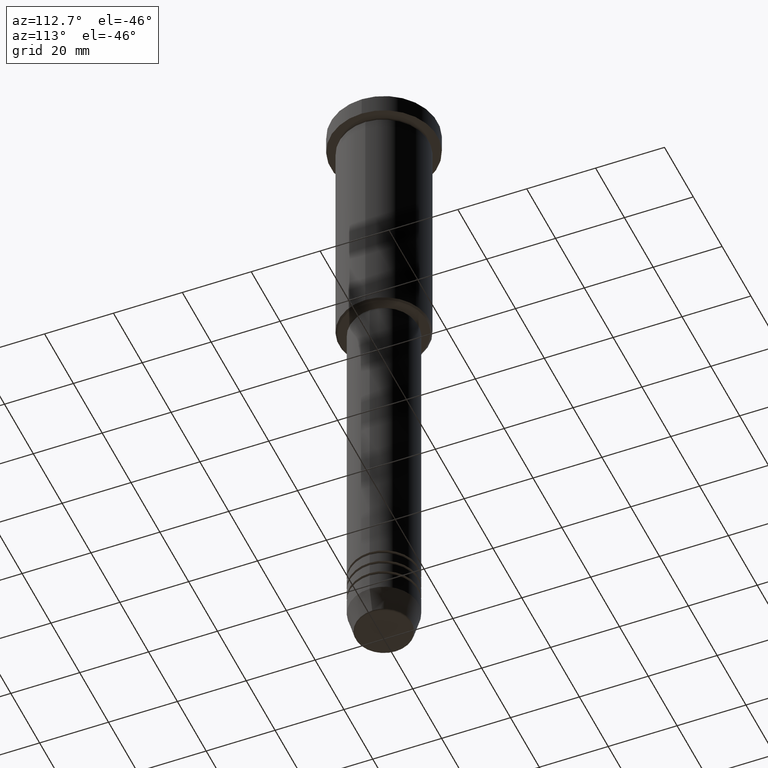
[diagram: clean part render]
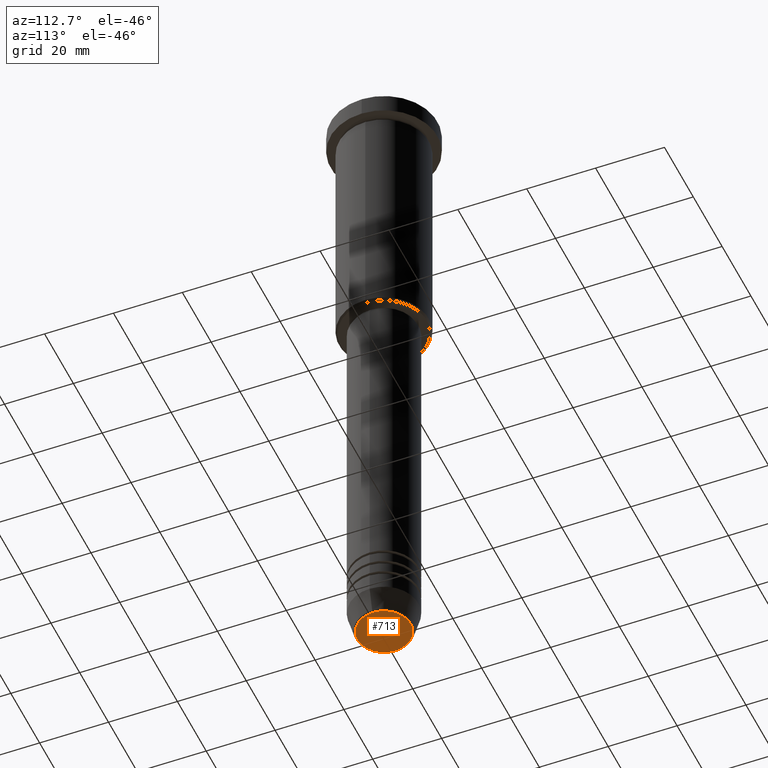
[diagram: same view with one face highlighted and labeled with its STEP entity id]
A machine part, auxiliary view. The second image highlights one B-rep face of the part: STEP entity #713.
In plain terms, the highlighted planar face has unit normal (0, -0, 1).
Its self-contained STEP definition (entity closure, byte-faithful):
#38 = DIRECTION ( 'NONE',  ( 1.000000000000000000, 0.000000000000000000, 0.000000000000000000 ) ) ;
#125 = VERTEX_POINT ( 'NONE', #204 ) ;
#146 = AXIS2_PLACEMENT_3D ( 'NONE', #398, #1132, #38 ) ;
#184 = FACE_OUTER_BOUND ( 'NONE', #487, .T. ) ;
#204 = CARTESIAN_POINT ( 'NONE',  ( -7.740692158992660055, 9.775343368540039135E-16, -191.0000000000000000 ) ) ;
#285 = CARTESIAN_POINT ( 'NONE',  ( 7.740692158992660055, 0.000000000000000000, -191.0000000000000000 ) ) ;
#305 = CARTESIAN_POINT ( 'NONE',  ( 0.000000000000000000, 0.000000000000000000, -191.0000000000000000 ) ) ;
#336 = EDGE_CURVE ( 'NONE', #913, #125, #881, .T. ) ;
#398 = CARTESIAN_POINT ( 'NONE',  ( 0.000000000000000000, 0.000000000000000000, -191.0000000000000000 ) ) ;
#406 = EDGE_CURVE ( 'NONE', #125, #913, #499, .T. ) ;
#412 = DIRECTION ( 'NONE',  ( 1.000000000000000000, 0.000000000000000000, 0.000000000000000000 ) ) ;
#487 = EDGE_LOOP ( 'NONE', ( #1013, #1178 ) ) ;
#499 = CIRCLE ( 'NONE', #146, 7.740692158992660055 ) ;
#535 = AXIS2_PLACEMENT_3D ( 'NONE', #610, #972, #412 ) ;
#563 = PLANE ( 'NONE',  #674 ) ;
#601 = DIRECTION ( 'NONE',  ( 1.000000000000000000, 0.000000000000000000, 0.000000000000000000 ) ) ;
#610 = CARTESIAN_POINT ( 'NONE',  ( 0.000000000000000000, 0.000000000000000000, -191.0000000000000000 ) ) ;
#674 = AXIS2_PLACEMENT_3D ( 'NONE', #305, #869, #601 ) ;
#713 = ADVANCED_FACE ( 'NONE', ( #184 ), #563, .F. ) ;
#869 = DIRECTION ( 'NONE',  ( 0.000000000000000000, -0.000000000000000000, 1.000000000000000000 ) ) ;
#881 = CIRCLE ( 'NONE', #535, 7.740692158992660055 ) ;
#913 = VERTEX_POINT ( 'NONE', #285 ) ;
#972 = DIRECTION ( 'NONE',  ( 0.000000000000000000, 0.000000000000000000, -1.000000000000000000 ) ) ;
#1013 = ORIENTED_EDGE ( 'NONE', *, *, #336, .T. ) ;
#1132 = DIRECTION ( 'NONE',  ( 0.000000000000000000, 0.000000000000000000, -1.000000000000000000 ) ) ;
#1178 = ORIENTED_EDGE ( 'NONE', *, *, #406, .T. ) ;